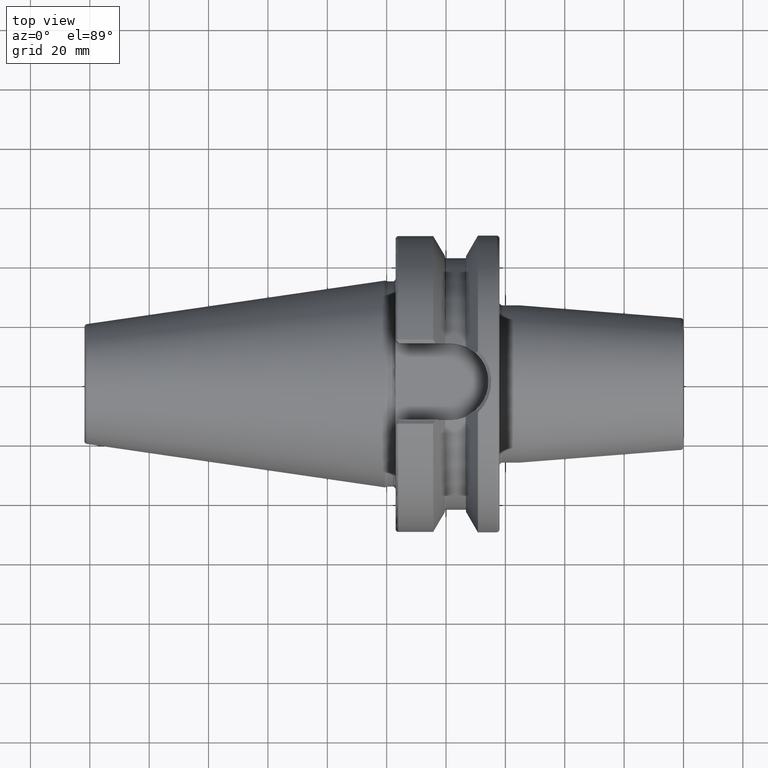
[diagram: clean part render]
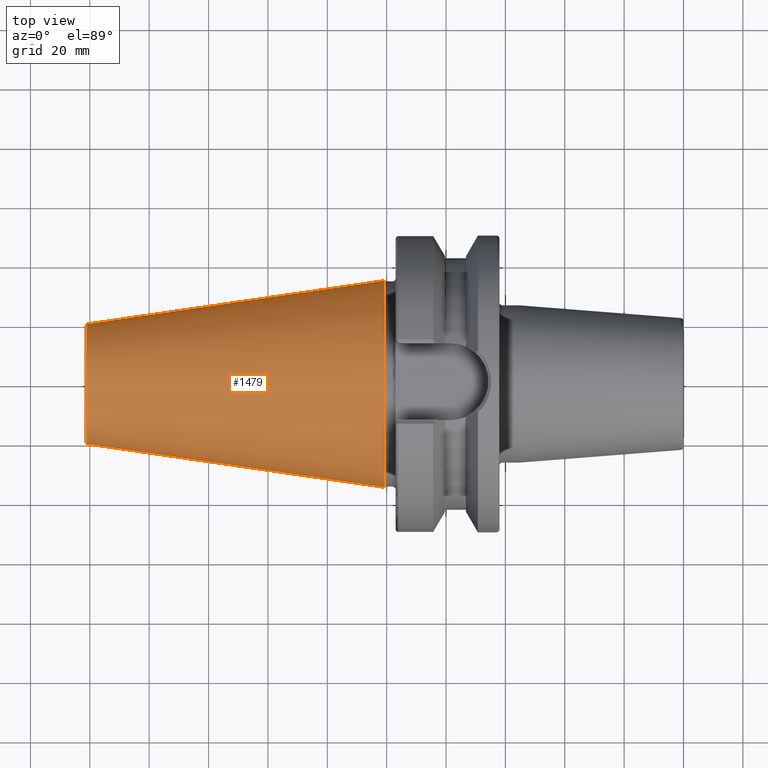
[diagram: same view with one face highlighted and labeled with its STEP entity id]
A machine part, top view. The second image highlights one B-rep face of the part: STEP entity #1479.
In plain terms, the highlighted conical surface has half-angle 8.298 deg.
Its self-contained STEP definition (entity closure, byte-faithful):
#37=CARTESIAN_POINT('',(-1.009443186692E2,0.E0,0.E0));
#38=DIRECTION('',(1.E0,0.E0,0.E0));
#39=DIRECTION('',(0.E0,1.E0,0.E0));
#40=AXIS2_PLACEMENT_3D('',#37,#38,#39);
#42=CARTESIAN_POINT('',(-6.191906162850E-1,0.E0,0.E0));
#43=DIRECTION('',(1.E0,0.E0,0.E0));
#44=DIRECTION('',(0.E0,1.E0,0.E0));
#45=AXIS2_PLACEMENT_3D('',#42,#43,#44);
#47=DIRECTION('',(-9.895312636440E-1,-1.443186691705E-1,0.E0));
#48=VECTOR('',#47,1.013865167670E2);
#49=CARTESIAN_POINT('',(-6.191906162849E-1,3.483469384295E1,0.E0));
#50=LINE('',#49,#48);
#51=DIRECTION('',(-9.895312636440E-1,1.443186691705E-1,0.E0));
#52=VECTOR('',#51,1.013865167670E2);
#53=CARTESIAN_POINT('',(-6.191906162849E-1,-3.483469384295E1,0.E0));
#54=LINE('',#53,#52);
#1168=CARTESIAN_POINT('',(-1.009443186692E2,2.020272667130E1,0.E0));
#1170=VERTEX_POINT('',#1168);
#1172=CARTESIAN_POINT('',(-1.009443186692E2,-2.020272667130E1,0.E0));
#1174=VERTEX_POINT('',#1172);
#1387=CARTESIAN_POINT('',(-6.191906162849E-1,3.483469384295E1,0.E0));
#1388=VERTEX_POINT('',#1387);
#1389=CARTESIAN_POINT('',(-6.191906162849E-1,-3.483469384295E1,0.E0));
#1390=VERTEX_POINT('',#1389);
#1465=CARTESIAN_POINT('',(-5.078175464273E1,0.E0,0.E0));
#1466=DIRECTION('',(1.E0,0.E0,0.E0));
#1467=DIRECTION('',(0.E0,-1.E0,0.E0));
#1468=AXIS2_PLACEMENT_3D('',#1465,#1466,#1467);
#1469=CONICAL_SURFACE('',#1468,2.751871025712E1,8.297826828206E0);
#1471=ORIENTED_EDGE('',*,*,#1470,.F.);
#1473=ORIENTED_EDGE('',*,*,#1472,.T.);
#1475=ORIENTED_EDGE('',*,*,#1474,.T.);
#1476=ORIENTED_EDGE('',*,*,#1458,.F.);
#1477=EDGE_LOOP('',(#1471,#1473,#1475,#1476));
#1478=FACE_OUTER_BOUND('',#1477,.F.);
#1479=ADVANCED_FACE('',(#1478),#1469,.T.);
#41=CIRCLE('',#40,2.020272667130E1);
#46=CIRCLE('',#45,3.483469384295E1);
#1458=EDGE_CURVE('',#1170,#1174,#41,.T.);
#1470=EDGE_CURVE('',#1388,#1170,#50,.T.);
#1472=EDGE_CURVE('',#1388,#1390,#46,.T.);
#1474=EDGE_CURVE('',#1390,#1174,#54,.T.);